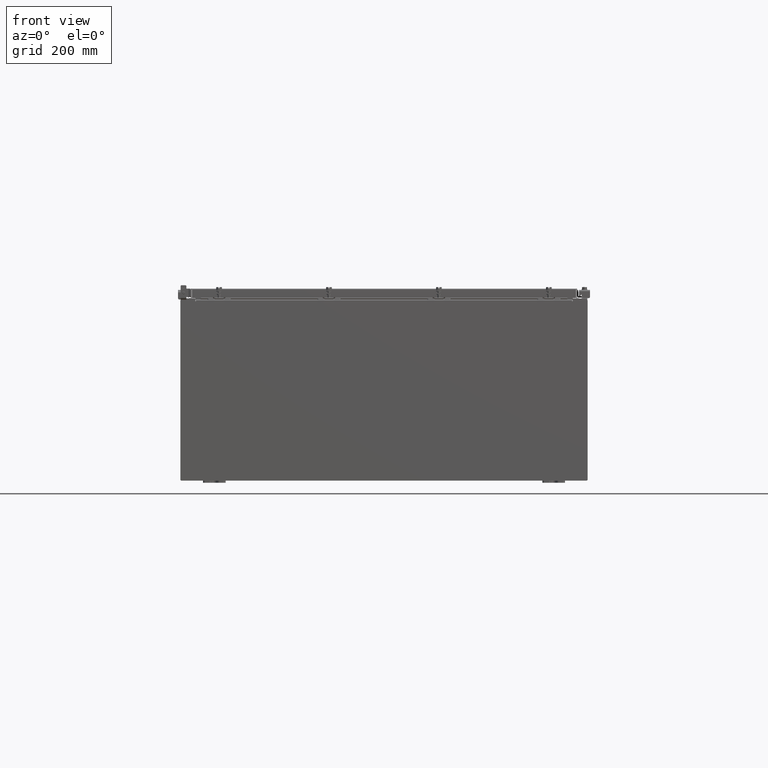
[diagram: clean part render]
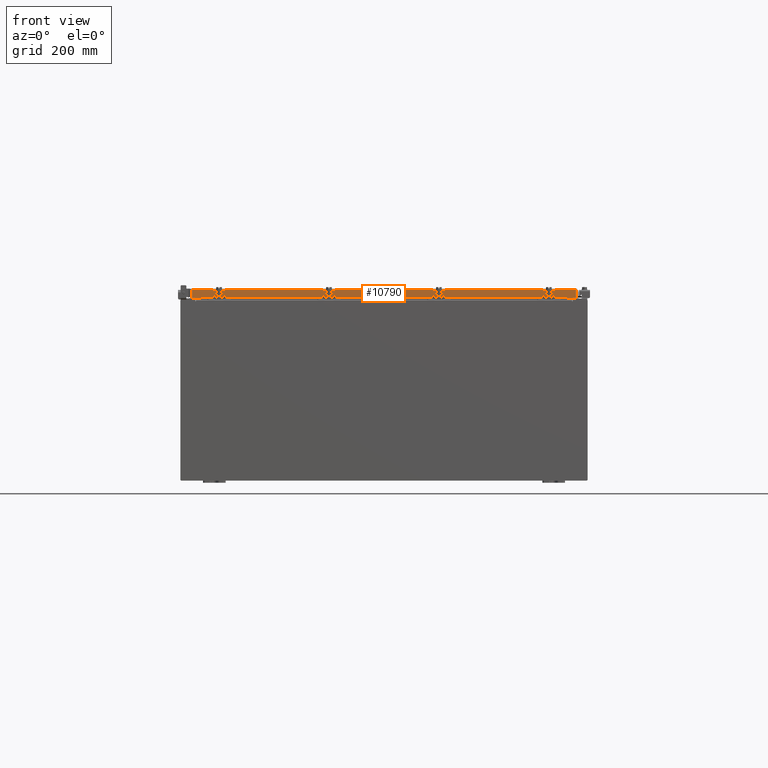
[diagram: same view with one face highlighted and labeled with its STEP entity id]
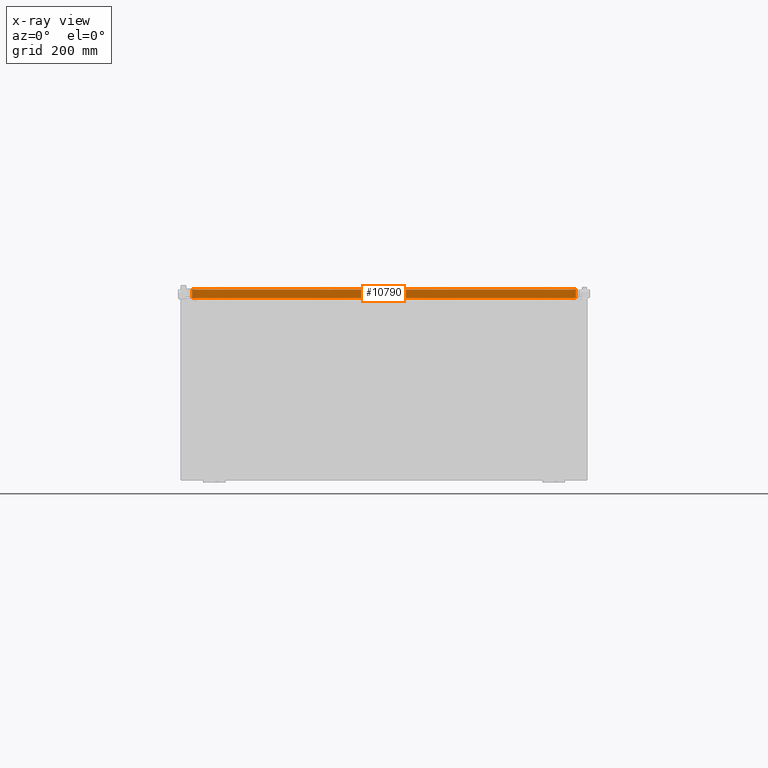
[diagram: x-ray of the same camera — body ghosted, the highlighted face saturated]
A machine part, front view. The second image highlights one B-rep face of the part: STEP entity #10790.
The next image is the same camera in x-ray: the body ghosted, the highlighted face saturated — about 0% of this face is hidden behind the body in this view.
In plain terms, the highlighted planar face has unit normal (0, 1, 0).
Its self-contained STEP definition (entity closure, byte-faithful):
#92 = CARTESIAN_POINT ( 'NONE',  ( -16.98915786437626700, -23.09399999999999400, -0.8499999999999955400 ) ) ;
#239 = VERTEX_POINT ( 'NONE', #24306 ) ;
#690 = FACE_OUTER_BOUND ( 'NONE', #26495, .T. ) ;
#1294 = ORIENTED_EDGE ( 'NONE', *, *, #13810, .F. ) ;
#1631 = EDGE_CURVE ( 'NONE', #6882, #11169, #19985, .T. ) ;
#1952 = VERTEX_POINT ( 'NONE', #11575 ) ;
#2002 = LINE ( 'NONE', #13268, #12554 ) ;
#2433 = ORIENTED_EDGE ( 'NONE', *, *, #11680, .F. ) ;
#2533 = VECTOR ( 'NONE', #17994, 39.37007874015748100 ) ;
#2707 = CARTESIAN_POINT ( 'NONE',  ( 17.07800000000000300, -23.09399999999999400, -0.08769999999999589200 ) ) ;
#3162 = CARTESIAN_POINT ( 'NONE',  ( -2.953810643149484600E-015, -23.09399999999999400, 0.0000000000000000000 ) ) ;
#3570 = DIRECTION ( 'NONE',  ( -1.000000000000000000, 1.279703943630056600E-016, 1.239713195391617400E-016 ) ) ;
#3731 = ORIENTED_EDGE ( 'NONE', *, *, #1631, .T. ) ;
#3917 = ORIENTED_EDGE ( 'NONE', *, *, #10442, .F. ) ;
#4825 = DIRECTION ( 'NONE',  ( 1.000000000000000000, -1.279703943630056600E-016, 1.368455531567204500E-048 ) ) ;
#5264 = PLANE ( 'NONE',  #21359 ) ;
#6882 = VERTEX_POINT ( 'NONE', #20242 ) ;
#7752 = LINE ( 'NONE', #7824, #18299 ) ;
#7824 = CARTESIAN_POINT ( 'NONE',  ( 17.07800000000000300, -23.09400000000000100, -0.8499999999999999800 ) ) ;
#8025 = DIRECTION ( 'NONE',  ( -1.000000000000000000, 1.279703943630056600E-016, 1.239713195391617400E-016 ) ) ;
#8335 = VERTEX_POINT ( 'NONE', #15599 ) ;
#9457 = CARTESIAN_POINT ( 'NONE',  ( 16.98915786437627100, -23.09399999999999400, -0.07470000000000015500 ) ) ;
#10066 = CARTESIAN_POINT ( 'NONE',  ( 17.07800000000000300, -23.09400000000000100, -0.8499999999999999800 ) ) ;
#10442 = EDGE_CURVE ( 'NONE', #1952, #8335, #18522, .T. ) ;
#10446 = CARTESIAN_POINT ( 'NONE',  ( -16.98915786437626700, -23.09399999999999400, 0.0000000000000000000 ) ) ;
#10790 = ADVANCED_FACE ( 'NONE', ( #690 ), #5264, .F. ) ;
#11108 = VERTEX_POINT ( 'NONE', #23023 ) ;
#11169 = VERTEX_POINT ( 'NONE', #92 ) ;
#11575 = CARTESIAN_POINT ( 'NONE',  ( 16.98915786437627100, -23.09399999999999400, -0.08769999999999589200 ) ) ;
#11662 = DIRECTION ( 'NONE',  ( 1.279703943630056600E-016, 1.000000000000000000, 3.607333059089401300E-031 ) ) ;
#11680 = EDGE_CURVE ( 'NONE', #11108, #11169, #26985, .T. ) ;
#12554 = VECTOR ( 'NONE', #13177, 39.37007874015748100 ) ;
#13177 = DIRECTION ( 'NONE',  ( -1.000000000000000000, 0.0000000000000000000, 0.0000000000000000000 ) ) ;
#13268 = CARTESIAN_POINT ( 'NONE',  ( 16.23915786437626700, -23.09400000000000100, -0.8499999999999977600 ) ) ;
#13810 = EDGE_CURVE ( 'NONE', #239, #11108, #2002, .T. ) ;
#15599 = CARTESIAN_POINT ( 'NONE',  ( 16.98915786437627100, -23.09399999999999400, -0.8499999999999999800 ) ) ;
#16610 = ORIENTED_EDGE ( 'NONE', *, *, #22671, .F. ) ;
#17854 = VECTOR ( 'NONE', #24105, 39.37007874015748100 ) ;
#17994 = DIRECTION ( 'NONE',  ( 0.0000000000000000000, 3.607333059089402100E-031, -1.000000000000000000 ) ) ;
#18299 = VECTOR ( 'NONE', #3570, 39.37007874015748100 ) ;
#18522 = LINE ( 'NONE', #9457, #17854 ) ;
#19985 = LINE ( 'NONE', #10446, #2533 ) ;
#20242 = CARTESIAN_POINT ( 'NONE',  ( -16.98915786437626700, -23.09399999999999400, -0.08769999999999589200 ) ) ;
#20620 = LINE ( 'NONE', #2707, #25533 ) ;
#21359 = AXIS2_PLACEMENT_3D ( 'NONE', #3162, #11662, #26338 ) ;
#21393 = VECTOR ( 'NONE', #8025, 39.37007874015748100 ) ;
#22671 = EDGE_CURVE ( 'NONE', #6882, #1952, #20620, .T. ) ;
#23023 = CARTESIAN_POINT ( 'NONE',  ( -16.23915786437626400, -23.09400000000000100, -0.8499999999999977600 ) ) ;
#24105 = DIRECTION ( 'NONE',  ( -0.0000000000000000000, 3.607333059089402100E-031, -1.000000000000000000 ) ) ;
#24306 = CARTESIAN_POINT ( 'NONE',  ( 16.23915786437626700, -23.09400000000000100, -0.8499999999999977600 ) ) ;
#25316 = ORIENTED_EDGE ( 'NONE', *, *, #25742, .F. ) ;
#25533 = VECTOR ( 'NONE', #4825, 39.37007874015748100 ) ;
#25742 = EDGE_CURVE ( 'NONE', #8335, #239, #7752, .T. ) ;
#26338 = DIRECTION ( 'NONE',  ( -1.000000000000000000, 1.279703943630056600E-016, 0.0000000000000000000 ) ) ;
#26495 = EDGE_LOOP ( 'NONE', ( #16610, #3731, #2433, #1294, #25316, #3917 ) ) ;
#26985 = LINE ( 'NONE', #10066, #21393 ) ;